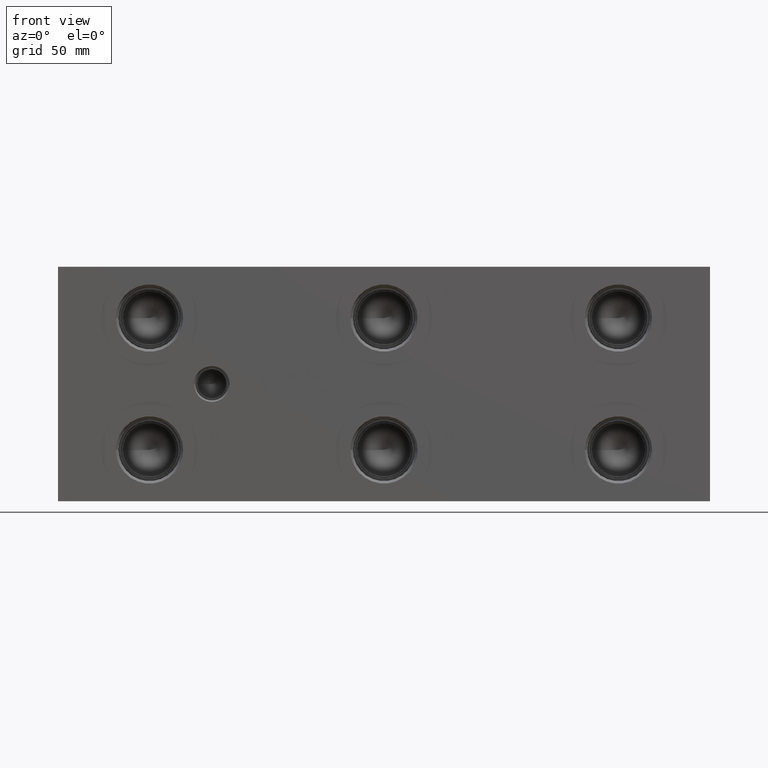
[diagram: clean part render]
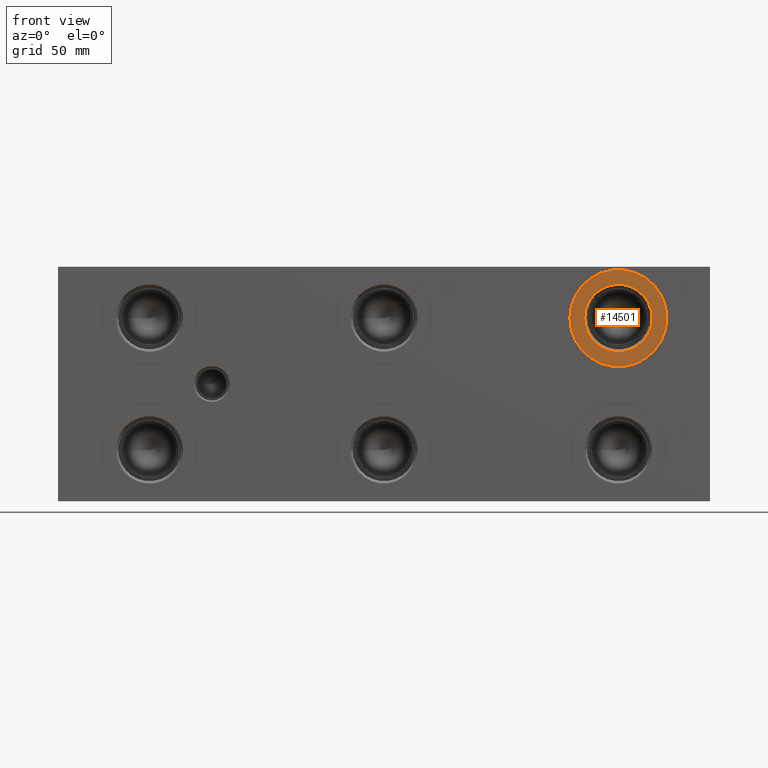
[diagram: same view with one face highlighted and labeled with its STEP entity id]
A machine part, front view. The second image highlights one B-rep face of the part: STEP entity #14501.
In plain terms, the highlighted planar face has unit normal (0, 1, 0).
Its self-contained STEP definition (entity closure, byte-faithful):
#421=CIRCLE('',#15157,21.0185);
#422=CIRCLE('',#15158,21.0185);
#423=CIRCLE('',#15160,14.5923);
#424=CIRCLE('',#15161,14.5923);
#1167=FACE_BOUND('',#2616,.T.);
#1786=FACE_OUTER_BOUND('',#2615,.T.);
#2615=EDGE_LOOP('',(#11975,#11976));
#2616=EDGE_LOOP('',(#11977,#11978));
#6532=VERTEX_POINT('',#24344);
#6533=VERTEX_POINT('',#24346);
#6534=VERTEX_POINT('',#24350);
#6535=VERTEX_POINT('',#24351);
#8446=EDGE_CURVE('',#6532,#6533,#421,.T.);
#8447=EDGE_CURVE('',#6533,#6532,#422,.T.);
#8448=EDGE_CURVE('',#6534,#6535,#423,.T.);
#8449=EDGE_CURVE('',#6535,#6534,#424,.T.);
#11975=ORIENTED_EDGE('',*,*,#8447,.F.);
#11976=ORIENTED_EDGE('',*,*,#8446,.F.);
#11977=ORIENTED_EDGE('',*,*,#8448,.T.);
#11978=ORIENTED_EDGE('',*,*,#8449,.T.);
#13383=PLANE('',#15159);
#14501=ADVANCED_FACE('',(#1786,#1167),#13383,.F.);
#15157=AXIS2_PLACEMENT_3D('',#24347,#17710,#17711);
#15158=AXIS2_PLACEMENT_3D('',#24348,#17712,#17713);
#15159=AXIS2_PLACEMENT_3D('',#24349,#17714,#17715);
#15160=AXIS2_PLACEMENT_3D('',#24352,#17716,#17717);
#15161=AXIS2_PLACEMENT_3D('',#24353,#17718,#17719);
#17710=DIRECTION('center_axis',(0.,1.,0.));
#17711=DIRECTION('ref_axis',(1.,0.,0.));
#17712=DIRECTION('center_axis',(0.,1.,0.));
#17713=DIRECTION('ref_axis',(1.,0.,0.));
#17714=DIRECTION('center_axis',(0.,1.,0.));
#17715=DIRECTION('ref_axis',(0.,0.,1.));
#17716=DIRECTION('center_axis',(0.,1.,0.));
#17717=DIRECTION('ref_axis',(1.,0.,0.));
#17718=DIRECTION('center_axis',(0.,1.,0.));
#17719=DIRECTION('ref_axis',(1.,0.,0.));
#24344=CARTESIAN_POINT('',(221.8563,0.7874,79.375));
#24346=CARTESIAN_POINT('',(263.8933,0.7874,79.375));
#24347=CARTESIAN_POINT('Origin',(242.8748,0.7874,79.375));
#24348=CARTESIAN_POINT('Origin',(242.8748,0.7874,79.375));
#24349=CARTESIAN_POINT('Origin',(257.4671,0.7874,79.375));
#24350=CARTESIAN_POINT('',(257.4671,0.7874,79.375));
#24351=CARTESIAN_POINT('',(228.2825,0.787400000000004,79.375));
#24352=CARTESIAN_POINT('Origin',(242.8748,0.7874,79.375));
#24353=CARTESIAN_POINT('Origin',(242.8748,0.7874,79.375));